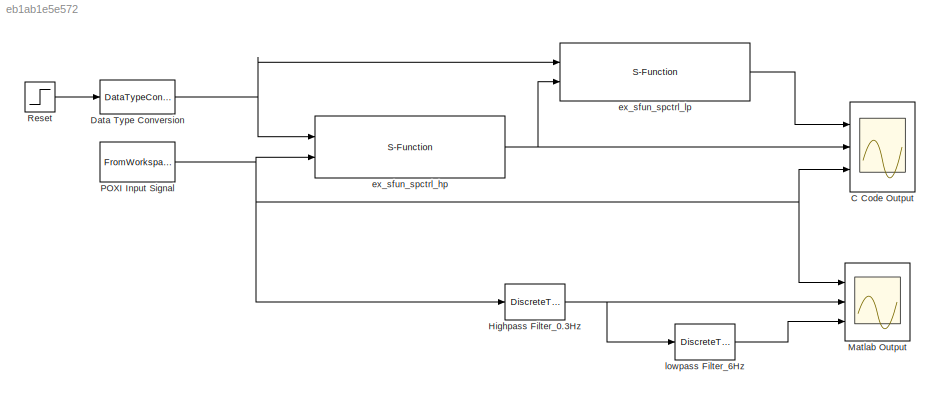
MODEL slx_eb1ab1e5e572
KIND model
CONFIG AbsTol = auto
CONFIG EnableMultiTasking = off
CONFIG FixedStep = auto
CONFIG MaxStep = auto
CONFIG MinStep = auto
CONFIG RelTol = 1e-3
CONFIG SampleTimeConstraint = Unconstrained
CONFIG Solver = VariableStepAuto
CONFIG SolverName = VariableStepAuto
CONFIG StartTime = 0.0
CONFIG StopTime = 20
BLOCK [Scope] C Code Output
  Floating = off
  NumInputPorts = 3
  Ports = [3]
  ScopeSpecificationString = Simulink.scopes.TimeScopeBlockCfg('CurrentConfiguration', extmgr.ConfigurationSet(extmgr.Configuration('Core','General UI',true,'FigureColor',[1 1 1]),extmgr.Configuration('Core','Source UI',true),extmgr.Configuration('Sources','WiredSimulink',true),extmgr.Configuration('Visuals','Time Domain',true,'SerializedDisplays',{struct('MinYLimReal','-488.38699','MaxYLimReal','1236.93583','YLabelReal','','...<+3168ch>
BLOCK [DataTypeConversion] Data Type Conversion
  OutDataTypeStr = int32
  RndMeth = Floor
  SaturateOnIntegerOverflow = off
BLOCK [DiscreteTransferFcn] Highpass Filter_0.3Hz
  Denominator = A_buhp
  InputPortMap = u0
  Numerator = B_buhp
  Ports = [1, 1]
BLOCK [Scope] Matlab Output
  Floating = off
  NumInputPorts = 3
  Ports = [3]
  ScopeSpecificationString = Simulink.scopes.TimeScopeBlockCfg('CurrentConfiguration', extmgr.ConfigurationSet(extmgr.Configuration('Core','General UI',true,'FigureColor',[1 1 1]),extmgr.Configuration('Core','Source UI',true),extmgr.Configuration('Sources','WiredSimulink',true,'DataLoggingVariableName','ScopeData1'),extmgr.Configuration('Visuals','Time Domain',true,'SerializedDisplays',{struct('MinYLimReal','1011.125','MaxYLi...<+3200ch>
BLOCK [FromWorkspace] POXI Input Signal
  OutDataTypeStr = double
  SampleTime = T
  VariableName = input_signal
  ZeroCross = on
BLOCK [Step] Reset
  After = 0
  Before = 1
  SampleTime = 0
  Time = 0.001
BLOCK [S-Function] ex_sfun_spctrl_hp
  EnableBusSupport = off
  FunctionName = ex_sfun_spctrl_hp
  Ports = [2, 1]
  SFcnIsStateOwnerBlock = off
  SFunctionDeploymentMode = off
BLOCK [S-Function] ex_sfun_spctrl_lp
  EnableBusSupport = off
  FunctionName = ex_sfun_spctrl_lp
  Ports = [2, 1]
  SFcnIsStateOwnerBlock = off
  SFunctionDeploymentMode = off
BLOCK [DiscreteTransferFcn] lowpass Filter_6Hz
  Denominator = A_bulp
  InputPortMap = u0
  Numerator = B_bulp
  Ports = [1, 1]
NET Data Type Conversion:1 -> ex_sfun_spctrl_hp:1, ex_sfun_spctrl_lp:1
NET Highpass Filter_0.3Hz:1 -> Matlab Output:2, lowpass Filter_6Hz:1
NET POXI Input Signal:1 -> C Code Output:3, Highpass Filter_0.3Hz:1, Matlab Output:1, ex_sfun_spctrl_hp:2
LINE Reset:1 -> Data Type Conversion:1
NET ex_sfun_spctrl_hp:1 -> C Code Output:2, ex_sfun_spctrl_lp:2
LINE ex_sfun_spctrl_lp:1 -> C Code Output:1
LINE lowpass Filter_6Hz:1 -> Matlab Output:3
note: NET lines group one-source signal fan-out (src -> all destinations, sorted); 1:1 wires keep LINE
